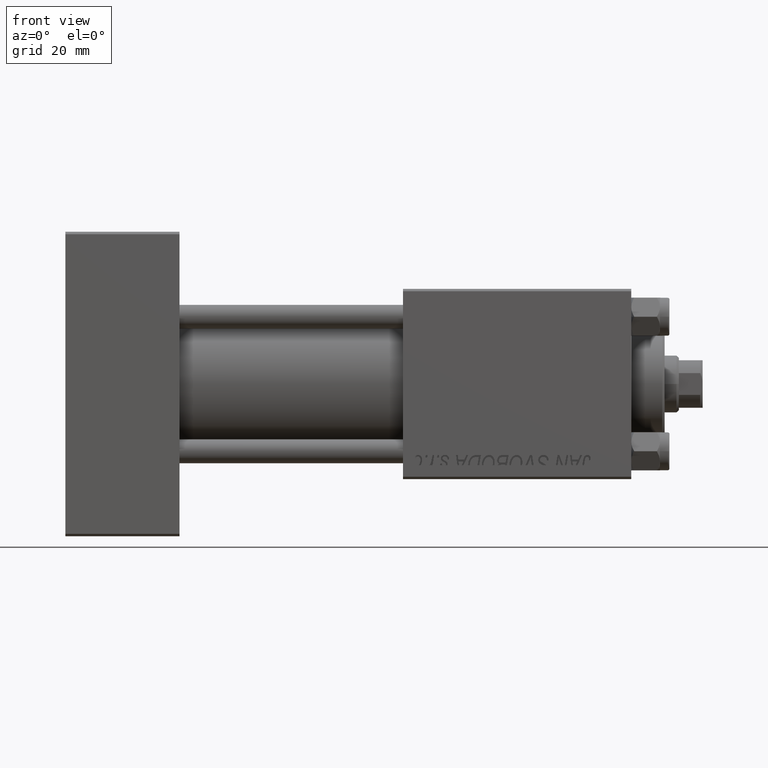
[diagram: clean part render]
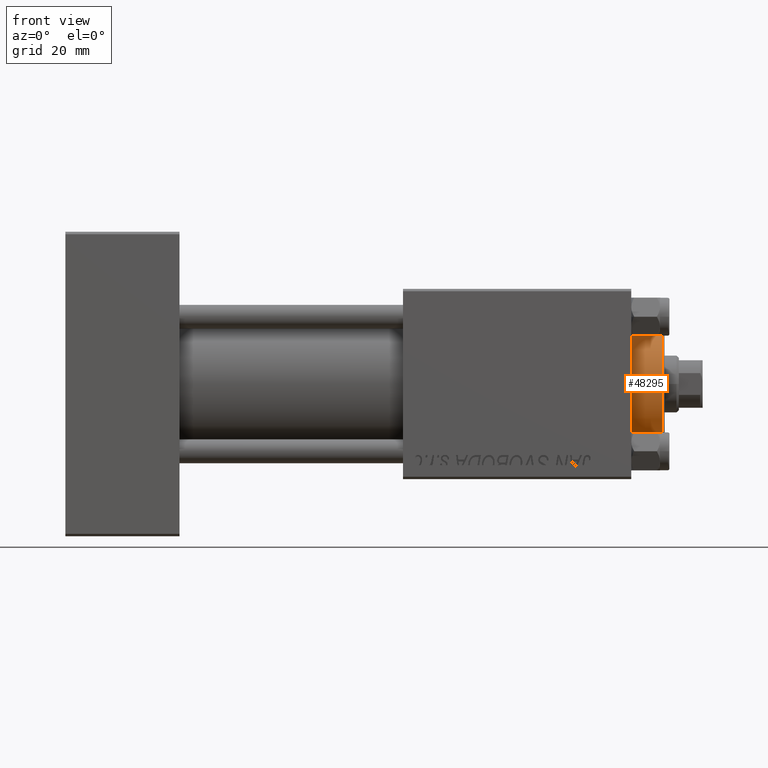
[diagram: same view with one face highlighted and labeled with its STEP entity id]
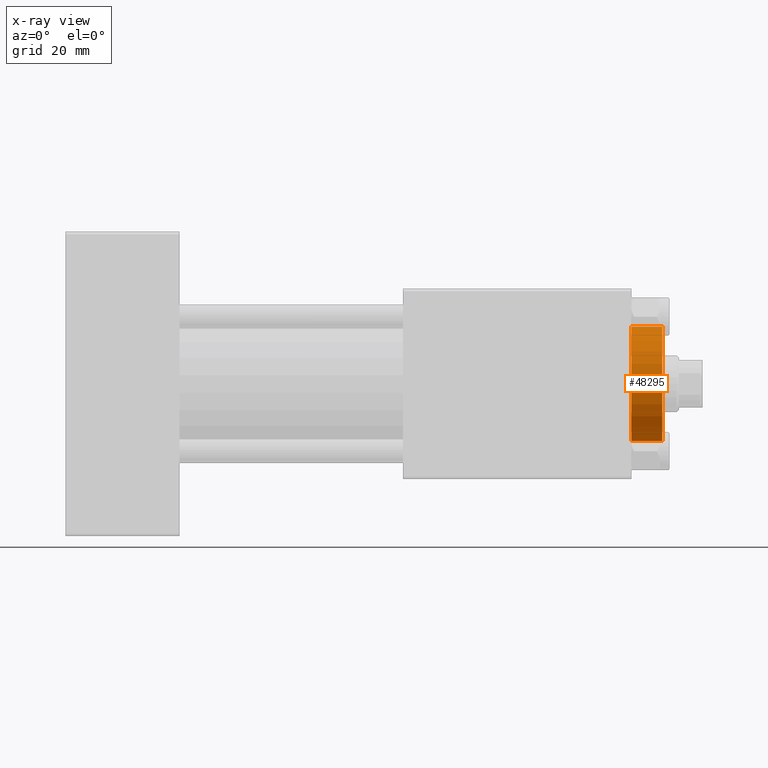
[diagram: x-ray of the same camera — body ghosted, the highlighted face saturated]
A machine part, front view. The second image highlights one B-rep face of the part: STEP entity #48295.
The next image is the same camera in x-ray: the body ghosted, the highlighted face saturated — about 1% of this face is hidden behind the body in this view.
In plain terms, the highlighted cylindrical surface (partial cylindrical patch) has radius 12 mm, axis along (-1, -0, 0).
Its self-contained STEP definition (entity closure, byte-faithful):
#870 = AXIS2_PLACEMENT_3D ( 'NONE', #34952, #16273, #12245 ) ;
#1175 = FACE_OUTER_BOUND ( 'NONE', #14105, .T. ) ;
#1477 = EDGE_CURVE ( 'NONE', #11160, #46912, #23964, .T. ) ;
#1915 = AXIS2_PLACEMENT_3D ( 'NONE', #21111, #35745, #36248 ) ;
#3994 = VECTOR ( 'NONE', #5532, 1000.000000000000000 ) ;
#4271 = CIRCLE ( 'NONE', #35719, 12.00000000000000178 ) ;
#5532 = DIRECTION ( 'NONE',  ( -0.000000000000000000, -0.000000000000000000, -1.000000000000000000 ) ) ;
#8278 = CARTESIAN_POINT ( 'NONE',  ( -12.00000000000000178, 0.000000000000000000, 28.69999999999999929 ) ) ;
#11160 = VERTEX_POINT ( 'NONE', #16867 ) ;
#11847 = DIRECTION ( 'NONE',  ( 1.000000000000000000, 0.000000000000000000, 0.000000000000000000 ) ) ;
#12245 = DIRECTION ( 'NONE',  ( 1.000000000000000000, 0.000000000000000000, 0.000000000000000000 ) ) ;
#12542 = CYLINDRICAL_SURFACE ( 'NONE', #1915, 12.00000000000000178 ) ;
#12622 = CARTESIAN_POINT ( 'NONE',  ( 12.00000000000000178, 1.469576158976824144E-15, 35.70000000000000284 ) ) ;
#13547 = EDGE_CURVE ( 'NONE', #47111, #46912, #4271, .T. ) ;
#14105 = EDGE_LOOP ( 'NONE', ( #15880, #23756, #23926, #42913 ) ) ;
#14328 = LINE ( 'NONE', #33746, #46607 ) ;
#15880 = ORIENTED_EDGE ( 'NONE', *, *, #1477, .F. ) ;
#16273 = DIRECTION ( 'NONE',  ( 0.000000000000000000, 0.000000000000000000, -1.000000000000000000 ) ) ;
#16867 = CARTESIAN_POINT ( 'NONE',  ( 12.00000000000000178, 1.469576158976824144E-15, 35.19999999999999574 ) ) ;
#20954 = CARTESIAN_POINT ( 'NONE',  ( 12.00000000000000178, 1.469576158976824144E-15, 28.69999999999999929 ) ) ;
#21111 = CARTESIAN_POINT ( 'NONE',  ( 0.000000000000000000, 0.000000000000000000, 35.70000000000000284 ) ) ;
#23756 = ORIENTED_EDGE ( 'NONE', *, *, #39711, .T. ) ;
#23926 = ORIENTED_EDGE ( 'NONE', *, *, #28152, .T. ) ;
#23964 = LINE ( 'NONE', #12622, #3994 ) ;
#25864 = CIRCLE ( 'NONE', #870, 12.00000000000000178 ) ;
#28152 = EDGE_CURVE ( 'NONE', #36996, #47111, #14328, .T. ) ;
#29396 = CARTESIAN_POINT ( 'NONE',  ( -12.00000000000000178, 0.000000000000000000, 35.19999999999999574 ) ) ;
#33746 = CARTESIAN_POINT ( 'NONE',  ( -12.00000000000000178, 0.000000000000000000, 35.70000000000000284 ) ) ;
#34952 = CARTESIAN_POINT ( 'NONE',  ( 0.000000000000000000, 0.000000000000000000, 35.19999999999999574 ) ) ;
#35719 = AXIS2_PLACEMENT_3D ( 'NONE', #38358, #45931, #11847 ) ;
#35745 = DIRECTION ( 'NONE',  ( -0.000000000000000000, -0.000000000000000000, -1.000000000000000000 ) ) ;
#36248 = DIRECTION ( 'NONE',  ( -1.000000000000000000, 0.000000000000000000, 0.000000000000000000 ) ) ;
#36996 = VERTEX_POINT ( 'NONE', #29396 ) ;
#38358 = CARTESIAN_POINT ( 'NONE',  ( 0.000000000000000000, 0.000000000000000000, 28.69999999999999929 ) ) ;
#39711 = EDGE_CURVE ( 'NONE', #11160, #36996, #25864, .T. ) ;
#42913 = ORIENTED_EDGE ( 'NONE', *, *, #13547, .T. ) ;
#45877 = DIRECTION ( 'NONE',  ( -0.000000000000000000, -0.000000000000000000, -1.000000000000000000 ) ) ;
#45931 = DIRECTION ( 'NONE',  ( 0.000000000000000000, 0.000000000000000000, 1.000000000000000000 ) ) ;
#46607 = VECTOR ( 'NONE', #45877, 1000.000000000000000 ) ;
#46912 = VERTEX_POINT ( 'NONE', #20954 ) ;
#47111 = VERTEX_POINT ( 'NONE', #8278 ) ;
#48295 = ADVANCED_FACE ( 'NONE', ( #1175 ), #12542, .T. ) ;